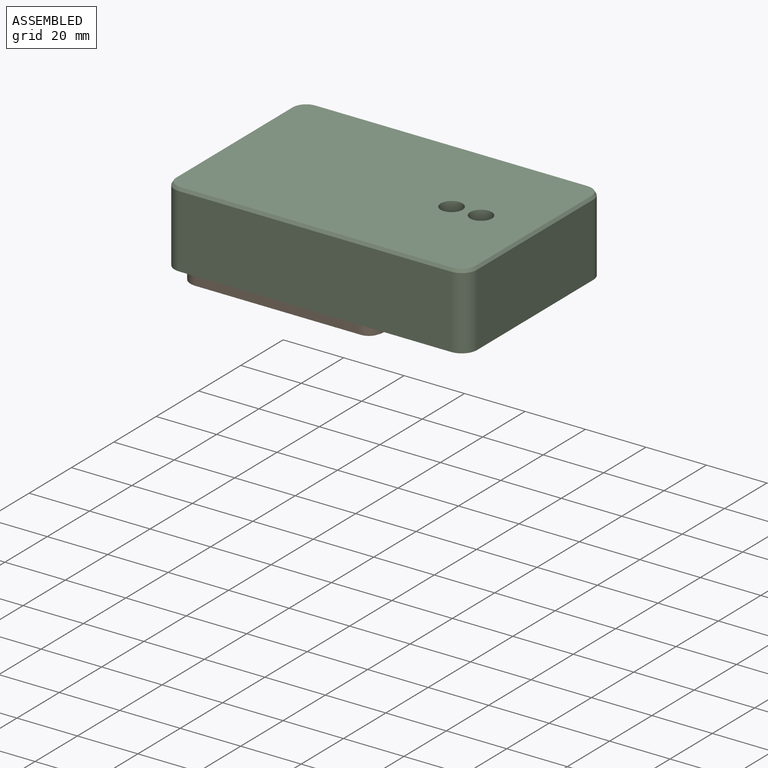
[diagram: assembled view]
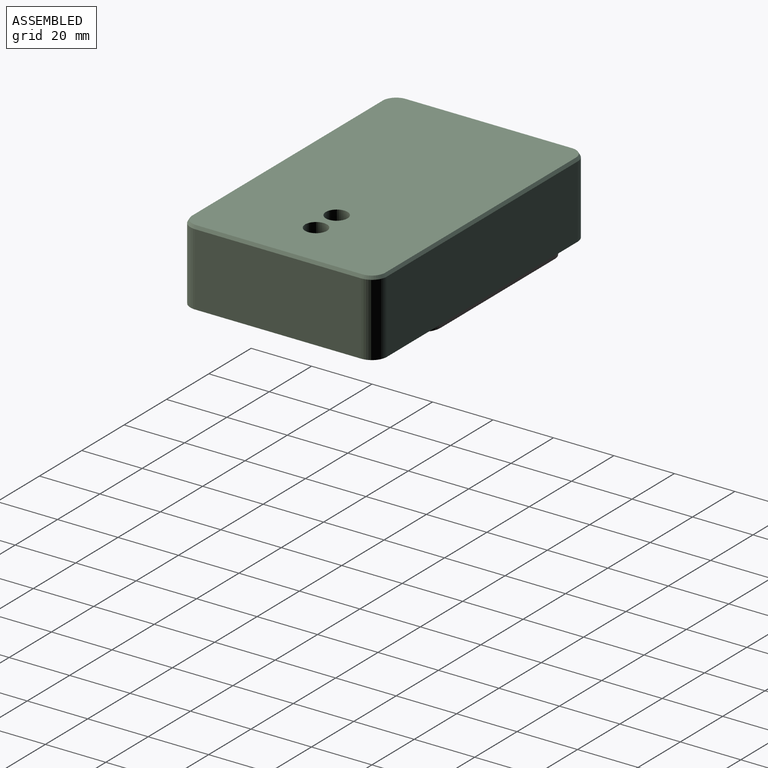
[diagram: assembled view, second angle]
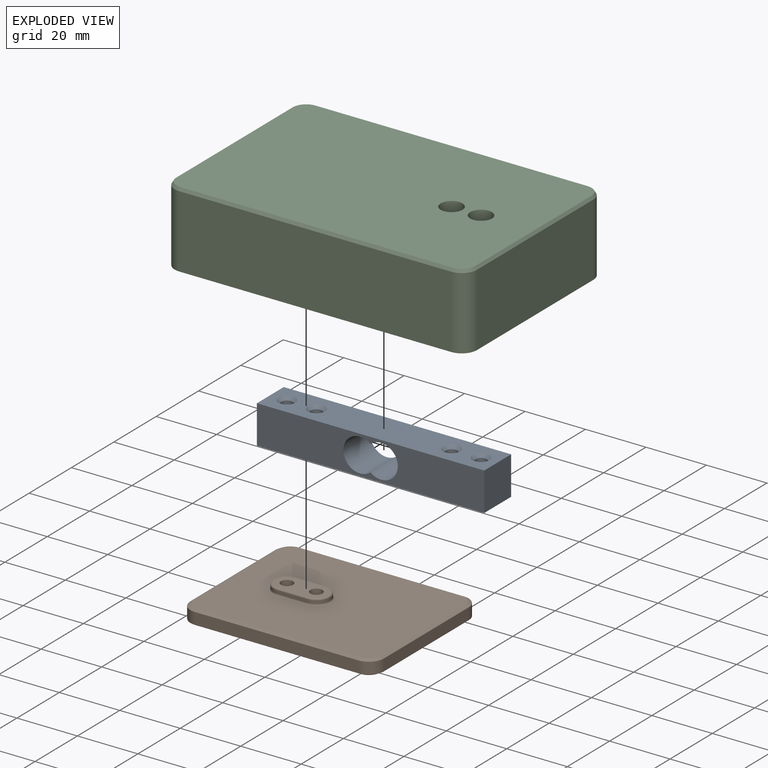
[diagram: exploded view]
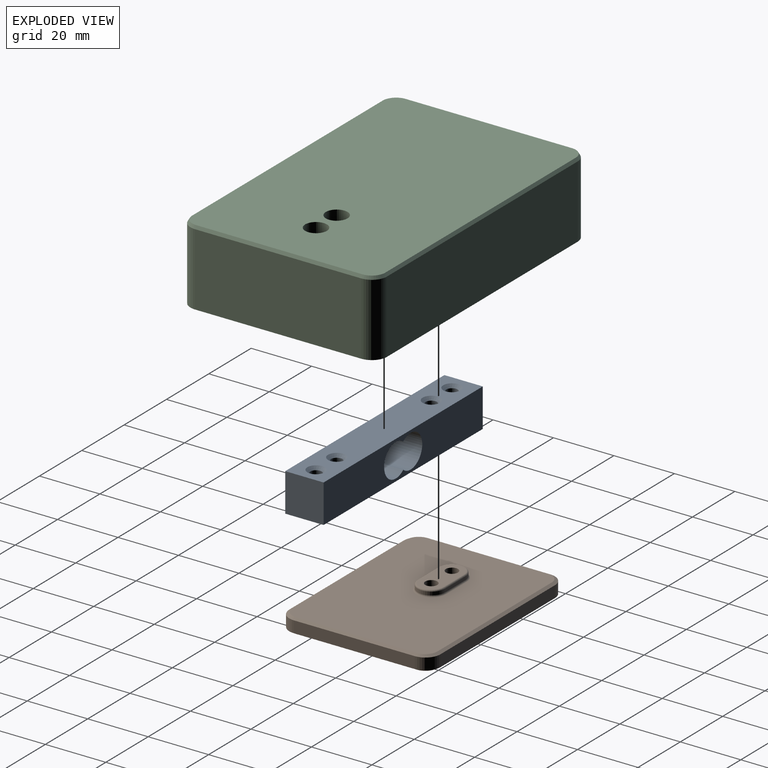
[diagram: exploded view, second angle]
ASSEMBLY  parts=3 mates=5
PART A: 20 faces, bbox 75.2x12.7x12.7 mm
  f0: plane 75.2x12.7mm, normal (0,0,1), area 851.2mm2, adj f2,f3,f4,f5,f16,f17,f18,f19
  f1: plane 75.2x12.7mm, normal (0,0,-1), area 851.2mm2, adj f2,f3,f4,f5,f12,f13,f14,f15
  f2: plane 75.2x12.7mm, normal (0,1,0), area 788.6mm2, adj f0,f1,f4,f5,f6,f7
  f3: plane 75.2x12.7mm, normal (0,-1,0), area 788.6mm2, adj f0,f1,f4,f5,f6,f7
  f4: plane 12.7x12.7mm, normal (1,0,0), area 161.3mm2, adj f0,f1,f2,f3
  f5: plane 12.7x12.7mm, normal (-1,0,0), area 161.3mm2, adj f0,f1,f2,f3
  f6: cylinder r=5.5mm len=12.7mm, axis (0,-1,0), area 315.8mm2, adj f2,f3,f7
  f7: cylinder r=5.5mm len=12.7mm, axis (0,-1,0), area 315.8mm2, adj f2,f3,f6
  f8: cylinder r=1.88mm len=10.7mm, axis (0,0,1), area 126.1mm2, adj f15,f16
  f9: cylinder r=1.88mm len=10.7mm, axis (0,0,1), area 126.1mm2, adj f14,f17
  f10: cylinder r=1.88mm len=10.7mm, axis (0,0,1), area 126.1mm2, adj f13,f18
  f11: cylinder r=1.88mm len=10.7mm, axis (0,0,1), area 126.1mm2, adj f12,f19
  f12: cone r=2.88mm half-angle=45deg, axis (0,0,-1), area 21.1mm2, adj f1,f11
  f13: cone r=2.88mm half-angle=45deg, axis (0,0,-1), area 21.1mm2, adj f1,f10
  f14: cone r=1.88mm half-angle=45deg, axis (0,0,-1), area 21.1mm2, adj f1,f9
  f15: cone r=1.88mm half-angle=45deg, axis (0,0,-1), area 21.1mm2, adj f1,f8
  f16: cone r=2.88mm half-angle=45deg, axis (0,0,1), area 21.1mm2, adj f0,f8
  f17: cone r=2.88mm half-angle=45deg, axis (0,0,1), area 21.1mm2, adj f0,f9
  f18: cone r=1.88mm half-angle=45deg, axis (0,0,1), area 21.1mm2, adj f0,f10
  f19: cone r=1.88mm half-angle=45deg, axis (0,0,1), area 21.1mm2, adj f0,f11
PART B: 43 faces, bbox 64x50x7 mm
  f0: plane 62x48mm, normal (0,0,-1), area 2786.3mm2, adj f12,f13,f14,f15,f16,f17,f18,f19
  f1: plane 62x48mm, normal (0,0,1), area 2856.6mm2, adj f20,f21,f22,f23,f24,f25,f26,f27
  f2: plane 54x3.85mm, normal (0,1,0), area 207.6mm2, adj f8,f10,f19,f21
  f3: plane 40x3.85mm, normal (-1,0,0), area 153.8mm2, adj f10,f11,f16,f25
  f4: plane 54x3.85mm, normal (0,-1,0), area 207.6mm2, adj f9,f11,f12,f26
  f5: plane 40x3.85mm, normal (1,0,0), area 153.8mm2, adj f8,f9,f15,f22
  f6: cylinder r=2mm len=5.79mm, axis (0,0,1), area 72.7mm2, adj f32,f41
  f7: cylinder r=2mm len=5.79mm, axis (0,0,1), area 72.7mm2, adj f32,f42
  f8: cylinder r=5mm len=5mm, axis (0,0,-1), area 30.2mm2, adj f2,f5,f17,f20
  f9: cylinder r=5mm len=5mm, axis (0,0,1), area 30.2mm2, adj f4,f5,f13,f24
  f10: cylinder r=5mm len=5mm, axis (0,0,1), area 30.2mm2, adj f2,f3,f18,f23
  f11: cylinder r=5mm len=5mm, axis (0,0,-1), area 30.2mm2, adj f3,f4,f14,f27
  f12: plane 54x1mm, normal (0,-0.5,-0.87), area 62.4mm2, adj f0,f4,f13,f14
  f13: cone r=4mm half-angle=60deg, axis (0,0,1), area 8.2mm2, adj f0,f9,f12,f15
  f14: cone r=4mm half-angle=60deg, axis (0,0,1), area 8.2mm2, adj f0,f11,f12,f16
  f15: plane 40x1mm, normal (0.5,0,-0.87), area 46.2mm2, adj f0,f5,f13,f17
  f16: plane 40x1mm, normal (-0.5,0,-0.87), area 46.2mm2, adj f0,f3,f14,f18
  f17: cone r=4mm half-angle=60deg, axis (0,0,1), area 8.2mm2, adj f0,f8,f15,f19
  f18: cone r=4mm half-angle=60deg, axis (0,0,1), area 8.2mm2, adj f0,f10,f16,f19
  f19: plane 54x1mm, normal (0,0.5,-0.87), area 62.4mm2, adj f0,f2,f17,f18
  f20: cone r=4mm half-angle=60deg, axis (0,0,-1), area 8.2mm2, adj f1,f8,f21,f22
  f21: plane 54x1mm, normal (0,0.5,0.87), area 62.4mm2, adj f1,f2,f20,f23
  f22: plane 40x1mm, normal (0.5,0,0.87), area 46.2mm2, adj f1,f5,f20,f24
  f23: cone r=4mm half-angle=60deg, axis (0,0,-1), area 8.2mm2, adj f1,f10,f21,f25
  f24: cone r=4mm half-angle=60deg, axis (0,0,-1), area 8.2mm2, adj f1,f9,f22,f26
  f25: plane 40x1mm, normal (-0.5,0,0.87), area 46.2mm2, adj f1,f3,f23,f27
  f26: plane 54x1mm, normal (0,-0.5,0.87), area 62.4mm2, adj f1,f4,f24,f27
  f27: cone r=4mm half-angle=60deg, axis (0,0,-1), area 8.2mm2, adj f1,f11,f25,f26
  f28: cylinder r=4.5mm len=9mm, axis (0,0,1), area 14.6mm2, adj f29,f31,f34,f38
  f29: plane 9.5x1mm, normal (0,1,0), area 9.5mm2, adj f28,f30,f36,f40
  f30: cylinder r=4.5mm len=9mm, axis (0,0,1), area 14.1mm2, adj f29,f31,f35,f39
  f31: plane 9.5x1mm, normal (0,-1,0), area 9.5mm2, adj f28,f30,f33,f37
  f32: plane 17.75x8mm, normal (0,0,-1), area 103.1mm2, adj f6,f7,f37,f38,f39,f40
  f33: cylinder r=0.5mm len=9.5mm, axis (1,0,0), area 7.5mm2, adj f0,f31,f34,f35
  f34: torus R=5mm, axis (0,0,1), area 11.9mm2, adj f0,f28,f33,f36
  f35: torus R=5mm, axis (0,0,1), area 11.6mm2, adj f0,f30,f33,f36
  f36: cylinder r=0.5mm len=9.5mm, axis (-1,0,0), area 7.5mm2, adj f0,f29,f34,f35
  f37: cylinder r=0.5mm len=9.51mm, axis (1,0,0), area 7.5mm2, adj f31,f32,f38,f39
  f38: torus R=4mm, axis (0,0,-1), area 11mm2, adj f28,f32,f37,f40
  f39: torus R=4mm, axis (0,0,-1), area 10.7mm2, adj f30,f32,f37,f40
  f40: cylinder r=0.5mm len=9.51mm, axis (-1,0,0), area 7.5mm2, adj f29,f32,f38,f39
  f41: cone r=4.1mm half-angle=60deg, axis (0,0,1), area 46.5mm2, adj f1,f6
  f42: cone r=4.1mm half-angle=60deg, axis (0,0,1), area 46.5mm2, adj f1,f7
PART C: 46 faces, bbox 100x65x25 mm
  f0: cylinder r=2mm len=9mm, axis (0,0,-1), area 113.1mm2, adj f11,f28
  f1: cylinder r=2mm len=9mm, axis (0,0,-1), area 113.1mm2, adj f9,f28
  f2: plane 55x24mm, normal (1,0,0), area 1320mm2, adj f12,f15,f19,f45
  f3: plane 90x24mm, normal (0,1,0), area 2160mm2, adj f12,f13,f16,f45
  f4: plane 55x24mm, normal (-1,0,0), area 1320mm2, adj f13,f14,f20,f45
  f5: plane 90x24mm, normal (0,-1,0), area 2160mm2, adj f14,f15,f23,f45
  f6: plane 98.85x63.85mm, normal (0,0,1), area 6212.6mm2, adj f8,f10,f16,f17,f18,f19,f20,f21
  f7: plane 94x59mm, normal (0,0,-1), area 5252.2mm2, adj f29,f30,f31,f32,f37,f38,f39,f40
  f8: cylinder r=3.6mm len=7.2mm, axis (0,0,1), area 90.5mm2, adj f6,f9
  f9: plane 7.2x7.2mm, normal (0,0,1), area 28.1mm2, adj f1,f8
  f10: cylinder r=3.6mm len=7.2mm, axis (0,0,1), area 90.5mm2, adj f6,f11
  f11: plane 7.2x7.2mm, normal (0,0,1), area 28.1mm2, adj f0,f10
  f12: cylinder r=5mm len=24mm, axis (0,0,-1), area 188.5mm2, adj f2,f3,f17,f45
  f13: cylinder r=5mm len=24mm, axis (0,0,1), area 188.5mm2, adj f3,f4,f18,f45
  f14: cylinder r=5mm len=24mm, axis (0,0,-1), area 188.5mm2, adj f4,f5,f22,f45
  f15: cylinder r=5mm len=24mm, axis (0,0,1), area 188.5mm2, adj f2,f5,f21,f45
  f16: plane 90x1mm, normal (0,0.87,0.5), area 103.9mm2, adj f3,f6,f17,f18
  f17: cone r=4.42mm half-angle=30deg, axis (0,0,-1), area 8.5mm2, adj f6,f12,f16,f19
  f18: cone r=4.42mm half-angle=30deg, axis (0,0,-1), area 8.5mm2, adj f6,f13,f16,f20
  f19: plane 55x1mm, normal (0.87,0,0.5), area 63.5mm2, adj f2,f6,f17,f21
  f20: plane 55x1mm, normal (-0.87,0,0.5), area 63.5mm2, adj f4,f6,f18,f22
  f21: cone r=4.42mm half-angle=30deg, axis (0,0,-1), area 8.5mm2, adj f6,f15,f19,f23
  f22: cone r=4.42mm half-angle=30deg, axis (0,0,-1), area 8.5mm2, adj f6,f14,f20,f23
  f23: plane 90x1mm, normal (0,-0.87,0.5), area 103.9mm2, adj f5,f6,f21,f22
  f24: cylinder r=5mm len=10mm, axis (0,0,1), area 32.4mm2, adj f25,f27,f30,f33
  f25: plane 9.5x2mm, normal (0,-1,0), area 19mm2, adj f24,f26,f32,f34
  f26: cylinder r=5mm len=10mm, axis (0,0,1), area 31.4mm2, adj f25,f27,f31,f36
  f27: plane 9.5x2mm, normal (0,1,0), area 19mm2, adj f24,f26,f29,f35
  f28: plane 17.75x8mm, normal (0,0,-1), area 103.1mm2, adj f0,f1,f33,f34,f35,f36
  f29: plane 9.51x2.01mm, normal (0,0.71,-0.71), area 26.8mm2, adj f7,f27,f30,f31
  f30: cone r=7mm half-angle=45deg, axis (0,0,1), area 54.9mm2, adj f7,f24,f29,f32
  f31: cone r=7mm half-angle=45deg, axis (0,0,1), area 53.3mm2, adj f7,f26,f29,f32
  f32: plane 9.51x2.01mm, normal (0,-0.71,-0.71), area 26.8mm2, adj f7,f25,f30,f31
  f33: torus R=4mm, axis (0,0,1), area 23.6mm2, adj f24,f28,f34,f35
  f34: cylinder r=1mm len=9.53mm, axis (-1,0,0), area 14.9mm2, adj f25,f28,f33,f36
  f35: cylinder r=1mm len=9.53mm, axis (1,0,0), area 14.9mm2, adj f27,f28,f33,f36
  f36: torus R=4mm, axis (0,0,1), area 22.9mm2, adj f26,f28,f34,f35
  f37: plane 90x17mm, normal (0,-1,0), area 1530mm2, adj f7,f38,f44,f45
  f38: cylinder r=2mm len=17mm, axis (0,0,1), area 53.4mm2, adj f7,f37,f39,f45
  f39: plane 55x17mm, normal (-1,0,0), area 935mm2, adj f7,f38,f40,f45
  f40: cylinder r=2mm len=17mm, axis (0,0,1), area 53.4mm2, adj f7,f39,f41,f45
  f41: plane 90x17mm, normal (0,1,0), area 1530mm2, adj f7,f40,f42,f45
  f42: cylinder r=2mm len=17mm, axis (0,0,1), area 53.4mm2, adj f7,f41,f43,f45
  f43: plane 55x17mm, normal (1,0,0), area 935mm2, adj f7,f42,f44,f45
  f44: cylinder r=2mm len=17mm, axis (0,0,1), area 53.4mm2, adj f7,f37,f43,f45
  f45: plane 100x65mm, normal (0,0,-1), area 936mm2, adj f2,f3,f4,f5,f12,f13,f14,f15
PLACE A rot(axis=(0,0,1),180deg) t=(13.29,-2.7,-32.25)mm
PLACE B rot(axis=(1,0,0),180deg) t=(13.29,-2.7,-40.6)mm
PLACE C t=(13.29,-2.7,-20.9)mm
MATE cylindrical B.f6 <-> A.f11  axis (0,0,-1) through (-18.81,-2.7,-44.39)mm
MATE cylindrical A.f8 <-> C.f0  axis (0,0,1) through (45.39,-2.7,-37.6)mm
MATE planar B.f32 <-> A.f10  axis (0,0,-1) through (-18.58,1.29,-38.6)mm
MATE cylindrical A.f9 <-> C.f1  axis (0,0,-1) through (35.64,-2.7,-38.6)mm
MATE cylindrical B.f7 <-> A.f10  axis (0,0,-1) through (-9.06,-2.7,-45.6)mm
